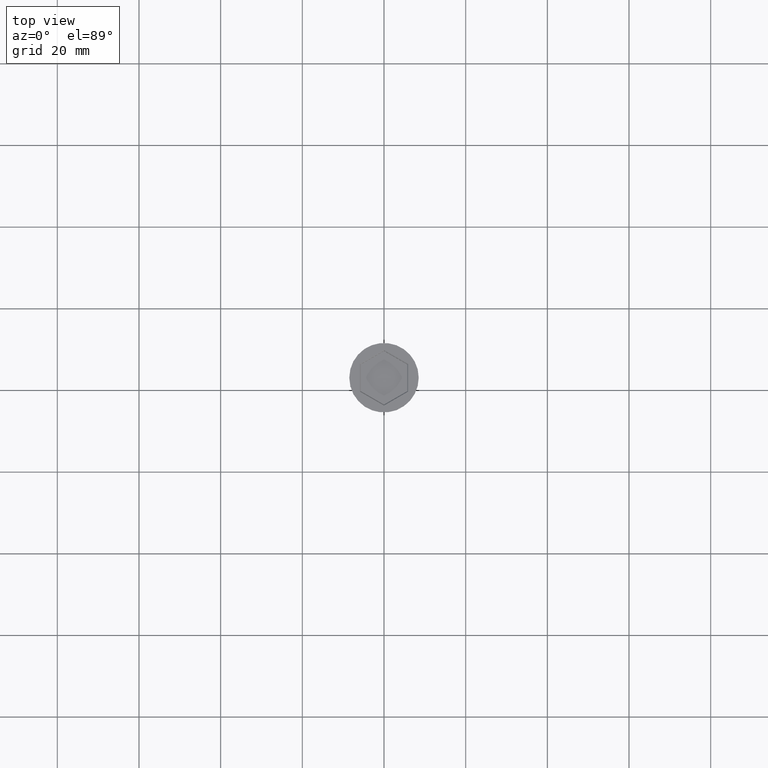
[diagram: clean part render]
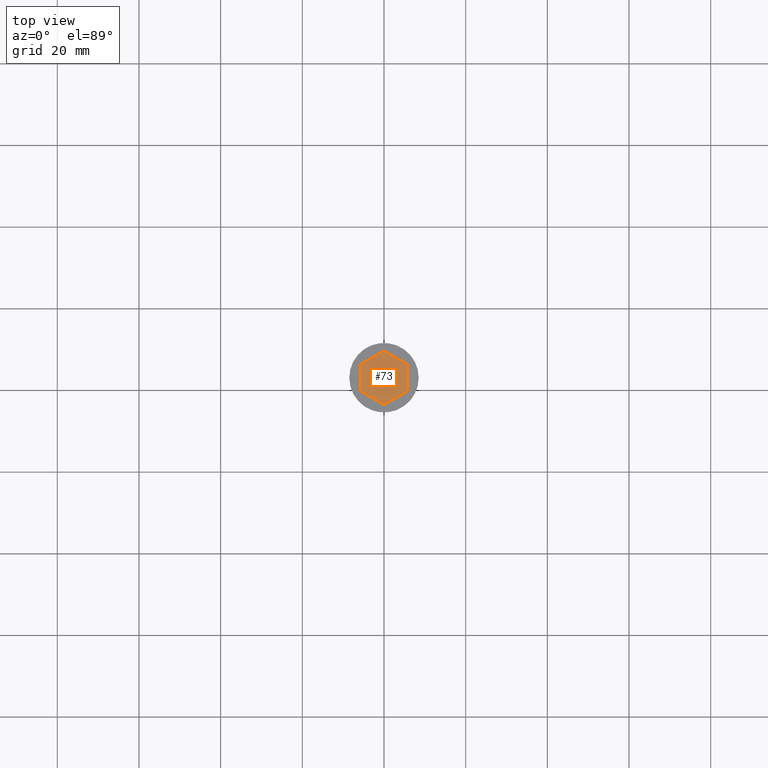
[diagram: same view with one face highlighted and labeled with its STEP entity id]
A machine part, top view. The second image highlights one B-rep face of the part: STEP entity #73.
In plain terms, the highlighted planar face has unit normal (-0, 0, 1).
Its self-contained STEP definition (entity closure, byte-faithful):
#66 = ORIENTED_EDGE ( 'NONE', *, *, #687, .T. ) ;
#73 = ADVANCED_FACE ( 'NONE', ( #109 ), #553, .T. ) ;
#83 = DIRECTION ( 'NONE',  ( -0.8660254037844385966, -0.4999999999999999445, 0.000000000000000000 ) ) ;
#109 = FACE_OUTER_BOUND ( 'NONE', #1112, .T. ) ;
#137 = LINE ( 'NONE', #1276, #1092 ) ;
#167 = LINE ( 'NONE', #747, #1090 ) ;
#181 = DIRECTION ( 'NONE',  ( 0.8660254037844387076, 0.4999999999999998890, 0.000000000000000000 ) ) ;
#225 = CARTESIAN_POINT ( 'NONE',  ( -5.700000000000000178, -3.290896534380866711, -2.000000000000000000 ) ) ;
#283 = DIRECTION ( 'NONE',  ( -1.317819823453648788E-16, -1.000000000000000000, 0.000000000000000000 ) ) ;
#302 = EDGE_CURVE ( 'NONE', #1517, #891, #683, .T. ) ;
#309 = VERTEX_POINT ( 'NONE', #909 ) ;
#361 = ORIENTED_EDGE ( 'NONE', *, *, #1142, .T. ) ;
#372 = VERTEX_POINT ( 'NONE', #791 ) ;
#399 = LINE ( 'NONE', #1244, #967 ) ;
#414 = CARTESIAN_POINT ( 'NONE',  ( 5.700000000000000178, 3.290896534380866711, -2.000000000000000000 ) ) ;
#419 = VERTEX_POINT ( 'NONE', #719 ) ;
#464 = DIRECTION ( 'NONE',  ( 3.953459470360945130E-16, 1.000000000000000000, 0.000000000000000000 ) ) ;
#474 = AXIS2_PLACEMENT_3D ( 'NONE', #793, #911, #684 ) ;
#508 = VERTEX_POINT ( 'NONE', #225 ) ;
#553 = PLANE ( 'NONE',  #474 ) ;
#581 = VECTOR ( 'NONE', #464, 1000.000000000000000 ) ;
#683 = LINE ( 'NONE', #895, #1502 ) ;
#684 = DIRECTION ( 'NONE',  ( 1.000000000000000000, 0.000000000000000000, 0.000000000000000000 ) ) ;
#687 = EDGE_CURVE ( 'NONE', #419, #309, #1519, .T. ) ;
#717 = CARTESIAN_POINT ( 'NONE',  ( 5.699999999999997513, -3.290896534380868488, -2.000000000000000000 ) ) ;
#719 = CARTESIAN_POINT ( 'NONE',  ( 5.699999999999997513, -3.290896534380868488, -2.000000000000000000 ) ) ;
#747 = CARTESIAN_POINT ( 'NONE',  ( -5.699999999999999289, 3.290896534380865823, -2.000000000000000000 ) ) ;
#791 = CARTESIAN_POINT ( 'NONE',  ( -1.301042606982605321E-15, -6.581793068761733423, -2.000000000000000000 ) ) ;
#793 = CARTESIAN_POINT ( 'NONE',  ( 0.000000000000000000, 0.000000000000000000, -2.000000000000000000 ) ) ;
#816 = VECTOR ( 'NONE', #1250, 1000.000000000000114 ) ;
#846 = EDGE_CURVE ( 'NONE', #891, #508, #167, .T. ) ;
#847 = DIRECTION ( 'NONE',  ( 0.8660254037844385966, -0.5000000000000000000, 0.000000000000000000 ) ) ;
#851 = ORIENTED_EDGE ( 'NONE', *, *, #1272, .T. ) ;
#891 = VERTEX_POINT ( 'NONE', #971 ) ;
#895 = CARTESIAN_POINT ( 'NONE',  ( -4.336808689942017736E-16, 6.581793068761731647, -2.000000000000000000 ) ) ;
#909 = CARTESIAN_POINT ( 'NONE',  ( 5.700000000000000178, 3.290896534380866711, -2.000000000000000000 ) ) ;
#911 = DIRECTION ( 'NONE',  ( -0.000000000000000000, 0.000000000000000000, 1.000000000000000000 ) ) ;
#918 = ORIENTED_EDGE ( 'NONE', *, *, #846, .T. ) ;
#967 = VECTOR ( 'NONE', #181, 1000.000000000000000 ) ;
#971 = CARTESIAN_POINT ( 'NONE',  ( -5.699999999999999289, 3.290896534380865823, -2.000000000000000000 ) ) ;
#1090 = VECTOR ( 'NONE', #283, 1000.000000000000000 ) ;
#1092 = VECTOR ( 'NONE', #847, 1000.000000000000227 ) ;
#1112 = EDGE_LOOP ( 'NONE', ( #1122, #1427, #918, #361, #851, #66 ) ) ;
#1122 = ORIENTED_EDGE ( 'NONE', *, *, #1237, .T. ) ;
#1142 = EDGE_CURVE ( 'NONE', #508, #372, #137, .T. ) ;
#1237 = EDGE_CURVE ( 'NONE', #309, #1517, #1352, .T. ) ;
#1244 = CARTESIAN_POINT ( 'NONE',  ( -1.301042606982605321E-15, -6.581793068761733423, -2.000000000000000000 ) ) ;
#1250 = DIRECTION ( 'NONE',  ( -0.8660254037844387076, 0.4999999999999997224, 0.000000000000000000 ) ) ;
#1272 = EDGE_CURVE ( 'NONE', #372, #419, #399, .T. ) ;
#1276 = CARTESIAN_POINT ( 'NONE',  ( -5.700000000000000178, -3.290896534380866711, -2.000000000000000000 ) ) ;
#1352 = LINE ( 'NONE', #414, #816 ) ;
#1427 = ORIENTED_EDGE ( 'NONE', *, *, #302, .T. ) ;
#1502 = VECTOR ( 'NONE', #83, 1000.000000000000114 ) ;
#1517 = VERTEX_POINT ( 'NONE', #1520 ) ;
#1519 = LINE ( 'NONE', #717, #581 ) ;
#1520 = CARTESIAN_POINT ( 'NONE',  ( -4.336808689942017736E-16, 6.581793068761731647, -2.000000000000000000 ) ) ;